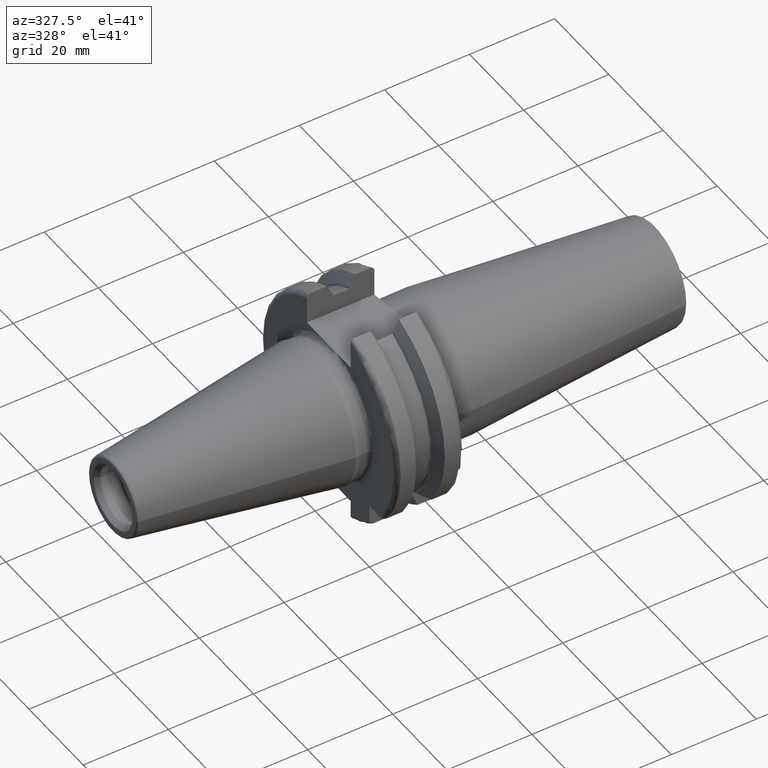
[diagram: clean part render]
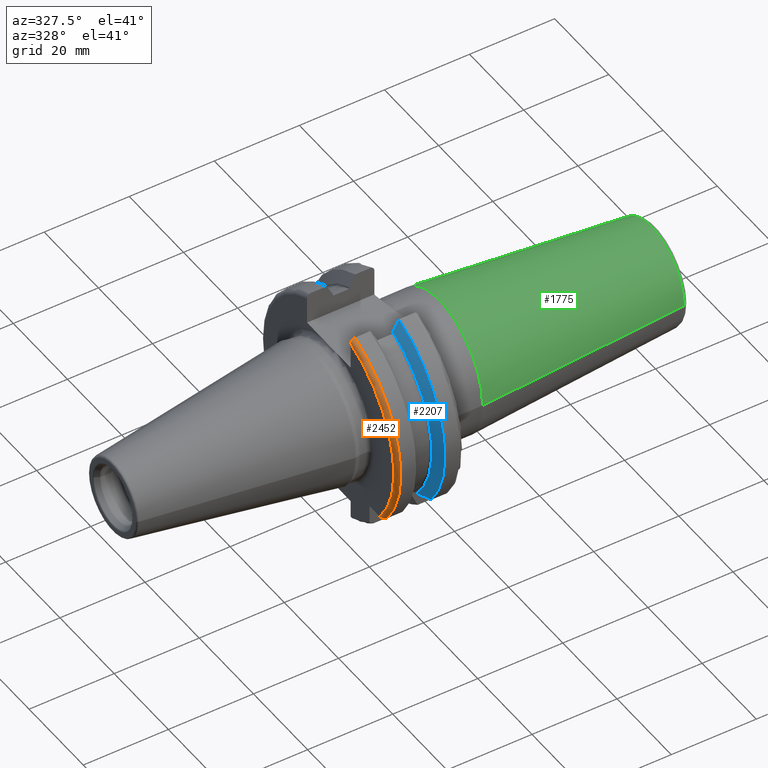
[diagram: same view with three faces highlighted in distinct colors, each labeled with its STEP entity id]
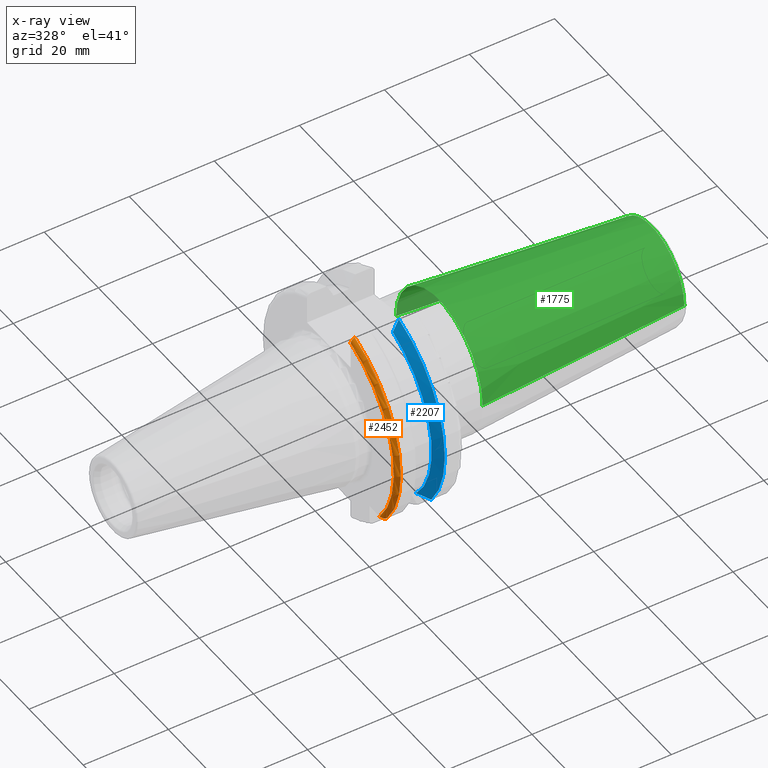
[diagram: x-ray of the same camera — body ghosted, the three highlighted faces saturated]
A machine part, auxiliary view with three faces highlighted in distinct colors.
The next image is the same camera in x-ray (body ghosted, the three faces saturated) — at least one of them is partly hidden behind the body in this view.
Their STEP definitions:

[orange] entity #2452 — the highlighted toroidal blend (fillet) surface has major radius 23.99 mm and minor (blend) radius 1 mm.
#869=CARTESIAN_POINT('',(4.2E0,0.E0,0.E0));
#870=DIRECTION('',(1.E0,0.E0,0.E0));
#871=DIRECTION('',(0.E0,-3.221288515406E-1,9.466958344712E-1));
#872=AXIS2_PLACEMENT_3D('',#869,#870,#871);
#874=CARTESIAN_POINT('',(3.2E0,-1.872218203095E1,-1.5E1));
#875=CARTESIAN_POINT('',(3.2E0,-1.882533160177E1,-1.5E1));
#876=CARTESIAN_POINT('',(3.218566956079E0,-1.902763089131E1,-1.5E1));
#877=CARTESIAN_POINT('',(3.309193416041E0,-1.933161346739E1,-1.5E1));
#878=CARTESIAN_POINT('',(3.460553004589E0,-1.959857963799E1,-1.5E1));
#879=CARTESIAN_POINT('',(3.665035128909E0,-1.981094368814E1,-1.5E1));
#880=CARTESIAN_POINT('',(3.913359451585E0,-1.995137641068E1,-1.5E1));
#881=CARTESIAN_POINT('',(4.100407074329E0,-1.998749859287E1,-1.5E1));
#882=CARTESIAN_POINT('',(4.2E0,-1.998749859287E1,-1.5E1));
#884=CARTESIAN_POINT('',(3.2E0,0.E0,0.E0));
#885=DIRECTION('',(-1.E0,0.E0,0.E0));
#886=DIRECTION('',(0.E0,-7.804160913276E-1,-6.252605252188E-1));
#887=AXIS2_PLACEMENT_3D('',#884,#885,#886);
#889=CARTESIAN_POINT('',(4.2E0,-8.05E0,2.365792890344E1));
#890=CARTESIAN_POINT('',(4.122127712833E0,-8.05E0,2.365792890344E1));
#891=CARTESIAN_POINT('',(3.971182683137E0,-8.05E0,2.363930307718E1));
#892=CARTESIAN_POINT('',(3.753345142709E0,-8.05E0,2.355708587001E1));
#893=CARTESIAN_POINT('',(3.561524648547E0,-8.05E0,2.342607287402E1));
#894=CARTESIAN_POINT('',(3.404779764413E0,-8.05E0,2.325597290451E1));
#895=CARTESIAN_POINT('',(3.288453220846E0,-8.05E0,2.305568112926E1));
#896=CARTESIAN_POINT('',(3.216617784360E0,-8.05E0,2.283396543716E1));
#897=CARTESIAN_POINT('',(3.2E0,-8.05E0,2.267895714932E1));
#898=CARTESIAN_POINT('',(3.2E0,-8.05E0,2.259906192743E1));
#1355=CARTESIAN_POINT('',(4.2E0,-8.05E0,2.365792890344E1));
#1356=VERTEX_POINT('',#1355);
#1371=CARTESIAN_POINT('',(3.2E0,-8.05E0,2.259906192743E1));
#1373=VERTEX_POINT('',#1371);
#1387=CARTESIAN_POINT('',(3.2E0,-1.872218203095E1,-1.5E1));
#1388=VERTEX_POINT('',#1387);
#1401=CARTESIAN_POINT('',(4.2E0,-1.998749859287E1,-1.5E1));
#1402=VERTEX_POINT('',#1401);
#2440=CARTESIAN_POINT('',(4.2E0,0.E0,0.E0));
#2441=DIRECTION('',(1.E0,0.E0,0.E0));
#2442=DIRECTION('',(0.E0,-1.E0,0.E0));
#2443=AXIS2_PLACEMENT_3D('',#2440,#2441,#2442);
#2444=TOROIDAL_SURFACE('',#2443,2.399E1,1.E0);
#2445=ORIENTED_EDGE('',*,*,#2130,.T.);
#2446=ORIENTED_EDGE('',*,*,#2359,.F.);
#2448=ORIENTED_EDGE('',*,*,#2447,.T.);
#2449=ORIENTED_EDGE('',*,*,#2411,.F.);
#2450=EDGE_LOOP('',(#2445,#2446,#2448,#2449));
#2451=FACE_OUTER_BOUND('',#2450,.F.);
#2452=ADVANCED_FACE('',(#2451),#2444,.T.);
#873=CIRCLE('',#872,2.499E1);
#883=B_SPLINE_CURVE_WITH_KNOTS('',3,(#874,#875,#876,#877,#878,#879,#880,#881,
#882),.UNSPECIFIED.,.F.,.F.,(4,1,1,1,1,1,4),(0.E0,1.666666666667E-1,
3.333333333333E-1,5.E-1,6.666666666667E-1,8.333333333333E-1,1.E0),
.UNSPECIFIED.);
#888=CIRCLE('',#887,2.399E1);
#899=B_SPLINE_CURVE_WITH_KNOTS('',3,(#889,#890,#891,#892,#893,#894,#895,#896,
#897,#898),.UNSPECIFIED.,.F.,.F.,(4,1,1,1,1,1,1,4),(0.E0,1.428571428571E-1,
2.857142857143E-1,4.285714285714E-1,5.714285714286E-1,7.142857142857E-1,
8.571428571429E-1,1.E0),.UNSPECIFIED.);
#2130=EDGE_CURVE('',#1356,#1402,#873,.T.);
#2359=EDGE_CURVE('',#1388,#1402,#883,.T.);
#2411=EDGE_CURVE('',#1356,#1373,#899,.T.);
#2447=EDGE_CURVE('',#1388,#1373,#888,.T.);

[blue] entity #2207 — the highlighted conical surface has half-angle 60 deg.
#515=CARTESIAN_POINT('',(1.454672557207E1,0.E0,0.E0));
#516=DIRECTION('',(-1.E0,0.E0,0.E0));
#517=DIRECTION('',(0.E0,-7.998198716635E-1,-6.002400960384E-1));
#518=AXIS2_PLACEMENT_3D('',#515,#516,#517);
#569=CARTESIAN_POINT('',(1.454672557207E1,-1.998749859287E1,-1.5E1));
#570=CARTESIAN_POINT('',(1.436889087574E1,-1.960238846957E1,-1.5E1));
#571=CARTESIAN_POINT('',(1.402372584659E1,-1.884688509238E1,-1.5E1));
#572=CARTESIAN_POINT('',(1.353784589592E1,-1.775879937320E1,-1.5E1));
#573=CARTESIAN_POINT('',(1.323420762196E1,-1.706160176959E1,-1.5E1));
#574=CARTESIAN_POINT('',(1.30875E1,-1.672022802897E1,-1.5E1));
#576=CARTESIAN_POINT('',(1.30875E1,0.E0,0.E0));
#577=DIRECTION('',(-1.E0,0.E0,0.E0));
#578=DIRECTION('',(0.E0,-7.443602857158E-1,-6.677782304397E-1));
#579=AXIS2_PLACEMENT_3D('',#576,#577,#578);
#581=CARTESIAN_POINT('',(1.454672557207E1,-8.05E0,2.365792890344E1));
#582=CARTESIAN_POINT('',(1.437757255744E1,-8.05E0,2.334845081669E1));
#583=CARTESIAN_POINT('',(1.404392615581E1,-8.05E0,2.273675949894E1));
#584=CARTESIAN_POINT('',(1.355756105317E1,-8.05E0,2.184111363646E1));
#585=CARTESIAN_POINT('',(1.324262174894E1,-8.05E0,2.125833411433E1));
#586=CARTESIAN_POINT('',(1.30875E1,-8.05E0,2.097053946232E1));
#1297=CARTESIAN_POINT('',(1.30875E1,-8.05E0,2.097053946232E1));
#1298=VERTEX_POINT('',#1297);
#1305=CARTESIAN_POINT('',(1.30875E1,-1.672022802897E1,-1.5E1));
#1307=VERTEX_POINT('',#1305);
#1309=VERTEX_POINT('',#581);
#1328=VERTEX_POINT('',#569);
#2193=CARTESIAN_POINT('',(1.381711278603E1,0.E0,0.E0));
#2194=DIRECTION('',(1.E0,0.E0,0.E0));
#2195=DIRECTION('',(0.E0,-1.E0,0.E0));
#2196=AXIS2_PLACEMENT_3D('',#2193,#2194,#2195);
#2197=CONICAL_SURFACE('',#2196,2.372627358474E1,6.E1);
#2198=ORIENTED_EDGE('',*,*,#2146,.F.);
#2200=ORIENTED_EDGE('',*,*,#2199,.T.);
#2202=ORIENTED_EDGE('',*,*,#2201,.T.);
#2204=ORIENTED_EDGE('',*,*,#2203,.F.);
#2205=EDGE_LOOP('',(#2198,#2200,#2202,#2204));
#2206=FACE_OUTER_BOUND('',#2205,.F.);
#2207=ADVANCED_FACE('',(#2206),#2197,.T.);
#519=CIRCLE('',#518,2.499E1);
#575=B_SPLINE_CURVE_WITH_KNOTS('',3,(#569,#570,#571,#572,#573,#574),
.UNSPECIFIED.,.F.,.F.,(4,1,1,4),(0.E0,3.333333333333E-1,6.666666666667E-1,1.E0),
.UNSPECIFIED.);
#580=CIRCLE('',#579,2.246254716948E1);
#587=B_SPLINE_CURVE_WITH_KNOTS('',3,(#581,#582,#583,#584,#585,#586),
.UNSPECIFIED.,.F.,.F.,(4,1,1,4),(0.E0,3.333333333333E-1,6.666666666667E-1,1.E0),
.UNSPECIFIED.);
#2146=EDGE_CURVE('',#1328,#1309,#519,.T.);
#2199=EDGE_CURVE('',#1328,#1307,#575,.T.);
#2201=EDGE_CURVE('',#1307,#1298,#580,.T.);
#2203=EDGE_CURVE('',#1309,#1298,#587,.T.);

[green] entity #1775 — the highlighted conical surface has half-angle 4.5 deg.
#219=CARTESIAN_POINT('',(2.917518105530E1,0.E0,0.E0));
#220=DIRECTION('',(1.E0,0.E0,0.E0));
#221=DIRECTION('',(0.E0,1.E0,0.E0));
#222=AXIS2_PLACEMENT_3D('',#219,#220,#221);
#252=DIRECTION('',(-9.969173337331E-1,7.845909572785E-2,1.333768581244E-14));
#253=VECTOR('',#252,5.005758888107E1);
#254=CARTESIAN_POINT('',(7.907845909573E1,1.207252684207E1,
-6.656929581452E-13));
#255=LINE('',#254,#253);
#256=DIRECTION('',(-9.969173337331E-1,-7.845909572785E-2,-1.322315014163E-14));
#257=VECTOR('',#256,5.005758888107E1);
#258=CARTESIAN_POINT('',(7.907845909573E1,-1.207252684207E1,
6.599595786236E-13));
#259=LINE('',#258,#257);
#270=CARTESIAN_POINT('',(7.907845909573E1,0.E0,0.E0));
#271=DIRECTION('',(-1.E0,0.E0,0.E0));
#272=DIRECTION('',(0.E0,-1.E0,0.E0));
#273=AXIS2_PLACEMENT_3D('',#270,#271,#272);
#1413=CARTESIAN_POINT('',(7.907845909573E1,1.207252684207E1,0.E0));
#1414=CARTESIAN_POINT('',(7.907845909573E1,-1.207252684207E1,0.E0));
#1415=VERTEX_POINT('',#1413);
#1416=VERTEX_POINT('',#1414);
#1421=CARTESIAN_POINT('',(2.917518105530E1,1.6E1,0.E0));
#1422=CARTESIAN_POINT('',(2.917518105530E1,-1.6E1,0.E0));
#1423=VERTEX_POINT('',#1421);
#1424=VERTEX_POINT('',#1422);
#1764=CARTESIAN_POINT('',(5.412682007551E1,0.E0,0.E0));
#1765=DIRECTION('',(-1.E0,0.E0,0.E0));
#1766=DIRECTION('',(0.E0,1.E0,0.E0));
#1767=AXIS2_PLACEMENT_3D('',#1764,#1765,#1766);
#1768=CONICAL_SURFACE('',#1767,1.403626342104E1,4.5E0);
#1769=ORIENTED_EDGE('',*,*,#1755,.F.);
#1770=ORIENTED_EDGE('',*,*,#1730,.T.);
#1771=ORIENTED_EDGE('',*,*,#1699,.F.);
#1772=ORIENTED_EDGE('',*,*,#1727,.F.);
#1773=EDGE_LOOP('',(#1769,#1770,#1771,#1772));
#1774=FACE_OUTER_BOUND('',#1773,.F.);
#1775=ADVANCED_FACE('',(#1774),#1768,.T.);
#223=CIRCLE('',#222,1.6E1);
#274=CIRCLE('',#273,1.207252684207E1);
#1699=EDGE_CURVE('',#1423,#1424,#223,.T.);
#1727=EDGE_CURVE('',#1415,#1423,#255,.T.);
#1730=EDGE_CURVE('',#1416,#1424,#259,.T.);
#1755=EDGE_CURVE('',#1416,#1415,#274,.T.);